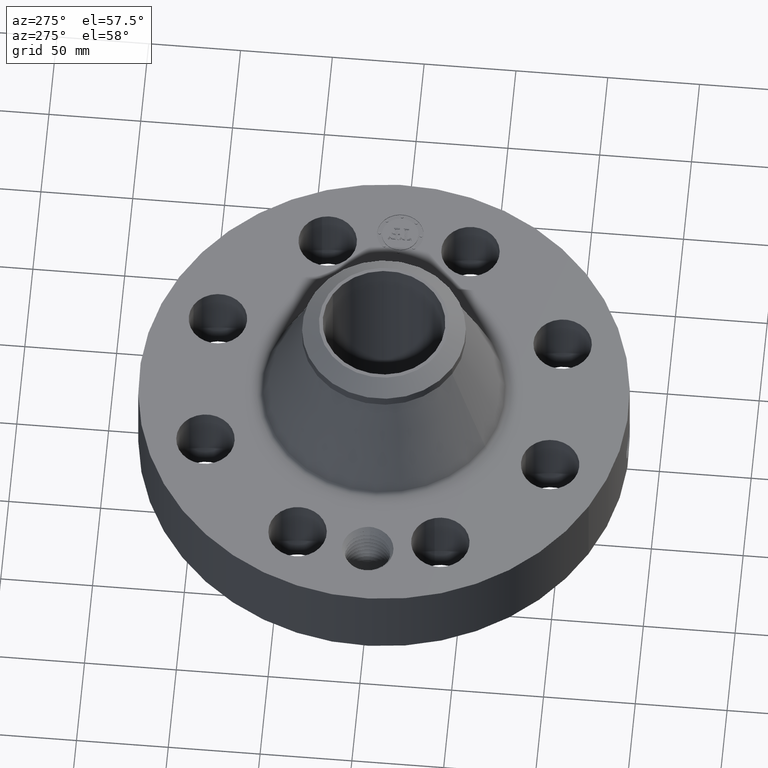
[diagram: clean part render]
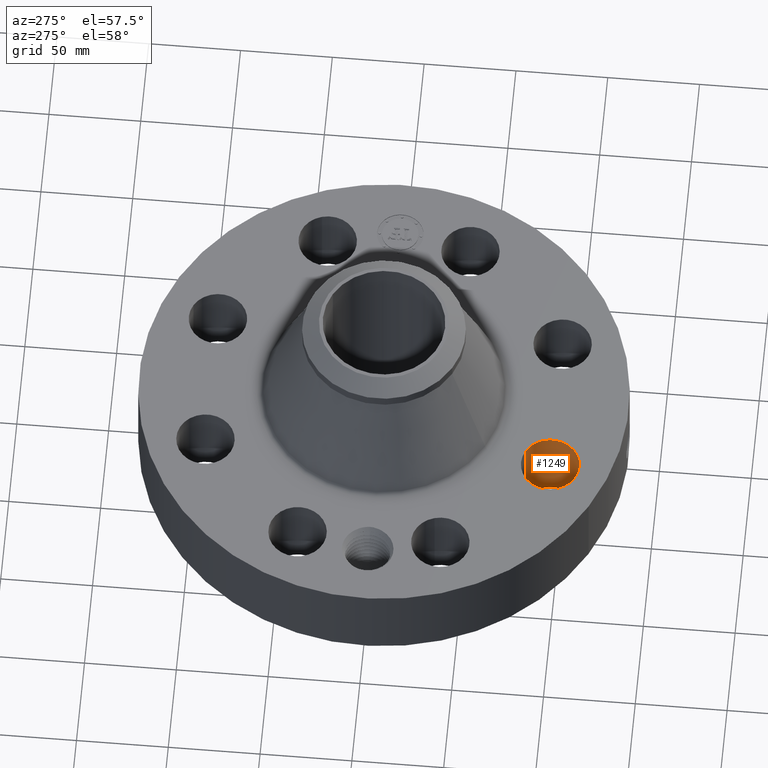
[diagram: same view with one face highlighted and labeled with its STEP entity id]
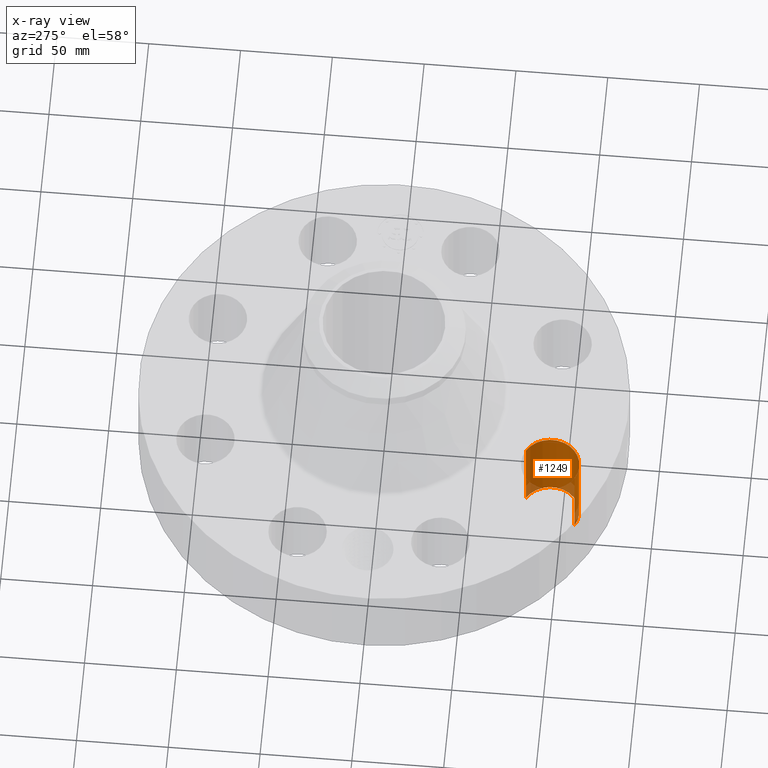
[diagram: x-ray of the same camera — body ghosted, the highlighted face saturated]
A machine part, auxiliary view. The second image highlights one B-rep face of the part: STEP entity #1249.
The next image is the same camera in x-ray: the body ghosted, the highlighted face saturated — about 10% of this face is hidden behind the body in this view.
In plain terms, the highlighted cylindrical surface (edge-blend (fillet) strip) has radius 15.875 mm, axis along (0, -0, -1).
Its self-contained STEP definition (entity closure, byte-faithful):
#285=AXIS2_PLACEMENT_3D('Circle Axis2P3D',#283,#284,$) ;
#618=AXIS2_PLACEMENT_3D('Circle Axis2P3D',#616,#617,$) ;
#1231=AXIS2_PLACEMENT_3D('Cylinder Axis2P3D',#1228,#1229,#1230) ;
#283=CARTESIAN_POINT('Axis2P3D Location',(-1.53073372947,-3.69551813006,0.250000000001)) ;
#287=CARTESIAN_POINT('Vertex',(-1.23109276784,-3.14702902888,0.250000000001)) ;
#289=CARTESIAN_POINT('Vertex',(-1.8303746911,-4.24400723124,0.250000000001)) ;
#611=CARTESIAN_POINT('Vertex',(-1.8303746911,-4.24400723124,2.13000000001)) ;
#613=CARTESIAN_POINT('Vertex',(-1.23109276784,-3.14702902888,2.13000000001)) ;
#616=CARTESIAN_POINT('Axis2P3D Location',(-1.53073372947,-3.69551813006,2.13000000001)) ;
#1228=CARTESIAN_POINT('Axis2P3D Location',(-1.53073372947,-3.69551813006,2.12606299213)) ;
#1233=CARTESIAN_POINT('Line Origine',(-1.23109276784,-3.14702902888,1.19)) ;
#1238=CARTESIAN_POINT('Line Origine',(-1.8303746911,-4.24400723124,1.19)) ;
#284=DIRECTION('Axis2P3D Direction',(0.,0.,-0.0393700787402)) ;
#617=DIRECTION('Axis2P3D Direction',(0.,0.,-0.0393700787402)) ;
#1229=DIRECTION('Axis2P3D Direction',(0.,-0.,-0.0393700787402)) ;
#1230=DIRECTION('Axis2P3D XDirection',(-0.0188750212049,-0.0345504945626,0.)) ;
#1234=DIRECTION('Vector Direction',(0.,0.,-0.0393700787402)) ;
#1239=DIRECTION('Vector Direction',(0.,0.,-0.0393700787402)) ;
#1235=VECTOR('Line Direction',#1234,0.0393700787402) ;
#1240=VECTOR('Line Direction',#1239,0.0393700787402) ;
#1244=ORIENTED_EDGE('',*,*,#1237,.F.) ;
#1245=ORIENTED_EDGE('',*,*,#291,.T.) ;
#1246=ORIENTED_EDGE('',*,*,#1242,.T.) ;
#1247=ORIENTED_EDGE('',*,*,#620,.F.) ;
#1249=ADVANCED_FACE('PartBody',(#1248),#1232,.F.) ;
#286=CIRCLE('generated circle',#285,0.625000000002) ;
#619=CIRCLE('generated circle',#618,0.625000000002) ;
#1232=CYLINDRICAL_SURFACE('generated cylinder',#1231,0.625000000002) ;
#291=EDGE_CURVE('',#288,#290,#286,.T.) ;
#620=EDGE_CURVE('',#614,#612,#619,.T.) ;
#1237=EDGE_CURVE('',#288,#614,#1236,.F.) ;
#1242=EDGE_CURVE('',#290,#612,#1241,.F.) ;
#1243=EDGE_LOOP('',(#1244,#1245,#1246,#1247)) ;
#1248=FACE_OUTER_BOUND('',#1243,.T.) ;
#1236=LINE('Line',#1233,#1235) ;
#1241=LINE('Line',#1238,#1240) ;
#288=VERTEX_POINT('',#287) ;
#290=VERTEX_POINT('',#289) ;
#612=VERTEX_POINT('',#611) ;
#614=VERTEX_POINT('',#613) ;